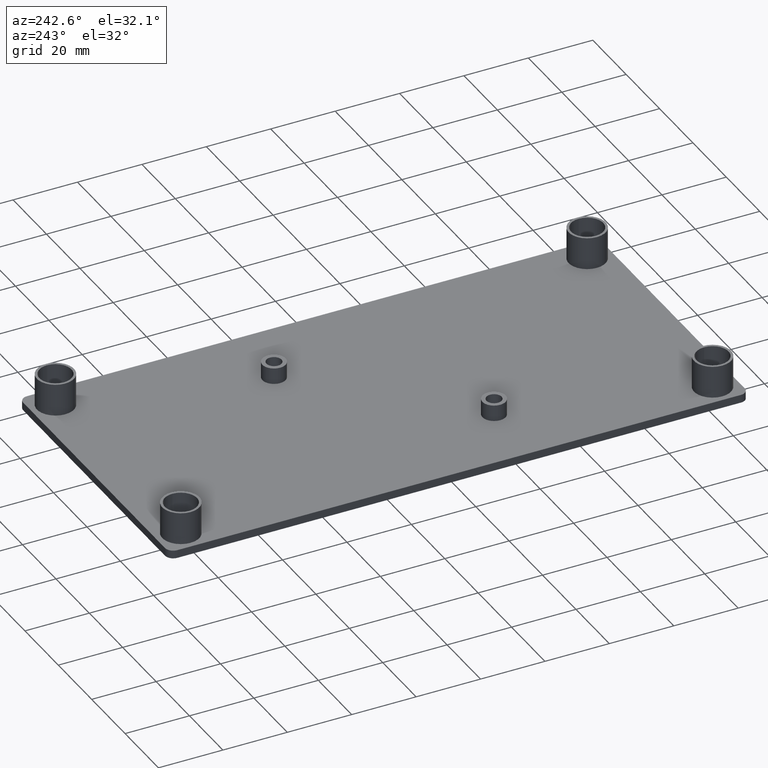
[diagram: clean part render]
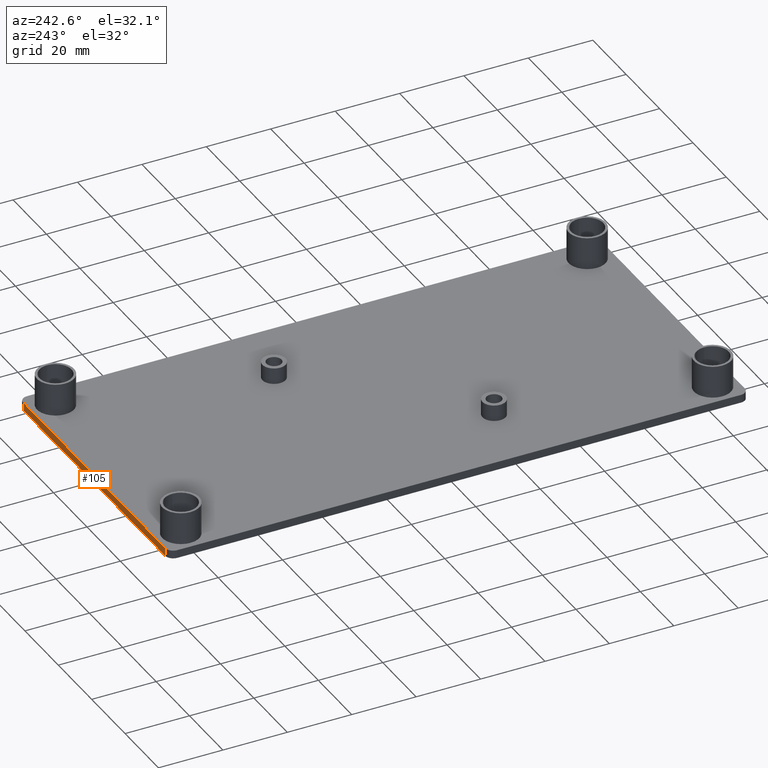
[diagram: same view with one face highlighted and labeled with its STEP entity id]
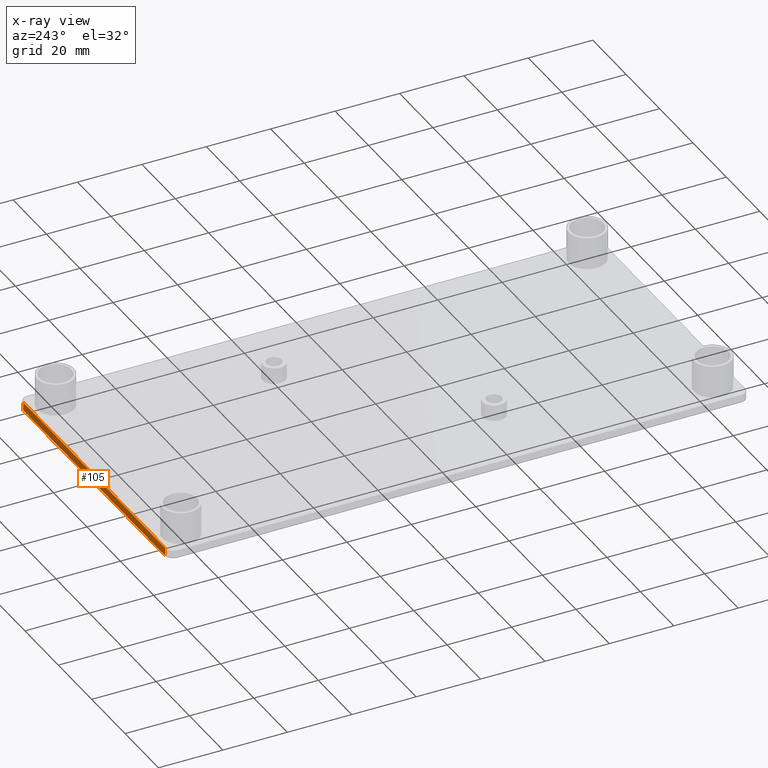
[diagram: x-ray of the same camera — body ghosted, the highlighted face saturated]
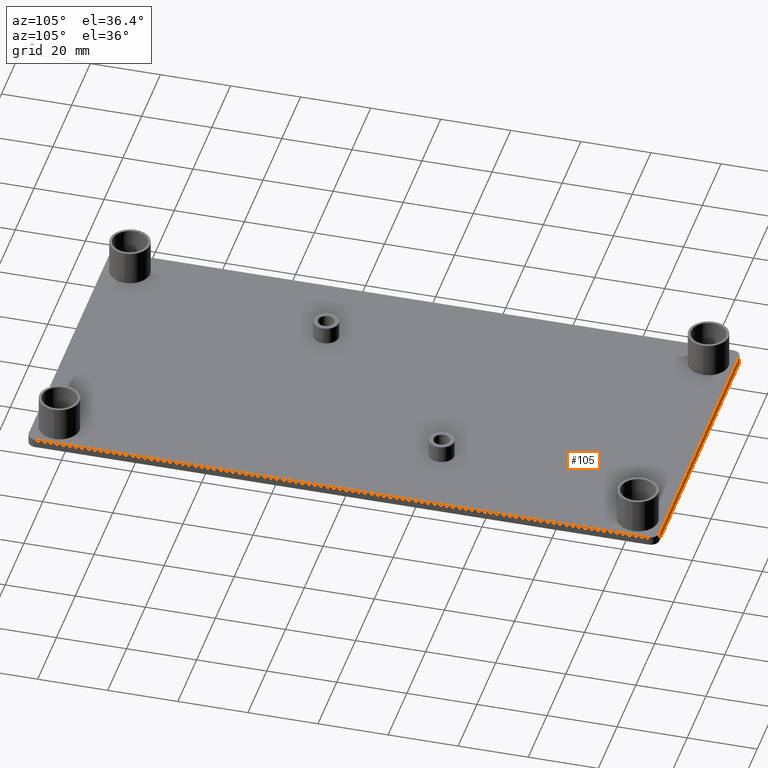
[diagram: same view with one face highlighted and labeled with its STEP entity id]
A machine part, auxiliary view. The second image highlights one B-rep face of the part: STEP entity #105.
The next image is the same camera in x-ray: the body ghosted, the highlighted face saturated — about 0% of this face is hidden behind the body in this view.
A second angle (auxiliary view) of the same face is appended — the face is thin or edge-on in the first view.
In plain terms, the highlighted planar face has unit normal (0, -1, 0).
Its self-contained STEP definition (entity closure, byte-faithful):
#48=CARTESIAN_POINT('',(-2.500000333334640,90.000000499999999,-2.500000000000000));
#49=VERTEX_POINT('',#48);
#57=CARTESIAN_POINT('',(-2.500000333334640,90.000000499999999,0.0));
#58=VERTEX_POINT('',#57);
#59=CARTESIAN_POINT('',(-2.500000333334640,90.000000499999999,0.0));
#60=DIRECTION('',(0.0,0.0,-1.0));
#61=VECTOR('',#60,2.500000000000000);
#62=LINE('',#59,#61);
#63=EDGE_CURVE('',#58,#49,#62,.T.);
#75=CARTESIAN_POINT('',(-2.500000333334640,90.000000499999999,0.0));
#76=DIRECTION('',(0.0,-1.0,0.0));
#77=DIRECTION('',(-1.0,0.0,0.0));
#78=AXIS2_PLACEMENT_3D('',#75,#76,#77);
#79=PLANE('',#78);
#80=ORIENTED_EDGE('',*,*,#63,.T.);
#81=CARTESIAN_POINT('',(-87.499956333334637,90.000000499999999,-2.500000000000000));
#82=VERTEX_POINT('',#81);
#83=CARTESIAN_POINT('',(-2.500000333334640,90.000000499999999,-2.500000000000000));
#84=DIRECTION('',(-1.0,0.0,0.0));
#85=VECTOR('',#84,84.999955999999997);
#86=LINE('',#83,#85);
#87=EDGE_CURVE('',#49,#82,#86,.T.);
#88=ORIENTED_EDGE('',*,*,#87,.T.);
#89=CARTESIAN_POINT('',(-87.499956333334637,90.000000499999999,0.0));
#90=VERTEX_POINT('',#89);
#91=CARTESIAN_POINT('',(-87.499956333334637,90.000000499999999,0.0));
#92=DIRECTION('',(0.0,0.0,-1.0));
#93=VECTOR('',#92,2.500000000000000);
#94=LINE('',#91,#93);
#95=EDGE_CURVE('',#90,#82,#94,.T.);
#96=ORIENTED_EDGE('',*,*,#95,.F.);
#97=CARTESIAN_POINT('',(-2.500000333334640,90.000000499999999,0.0));
#98=DIRECTION('',(-1.0,0.0,0.0));
#99=VECTOR('',#98,84.999955999999997);
#100=LINE('',#97,#99);
#101=EDGE_CURVE('',#58,#90,#100,.T.);
#102=ORIENTED_EDGE('',*,*,#101,.F.);
#103=EDGE_LOOP('',(#80,#88,#96,#102));
#104=FACE_OUTER_BOUND('',#103,.T.);
#105=ADVANCED_FACE('',(#104),#79,.F.);